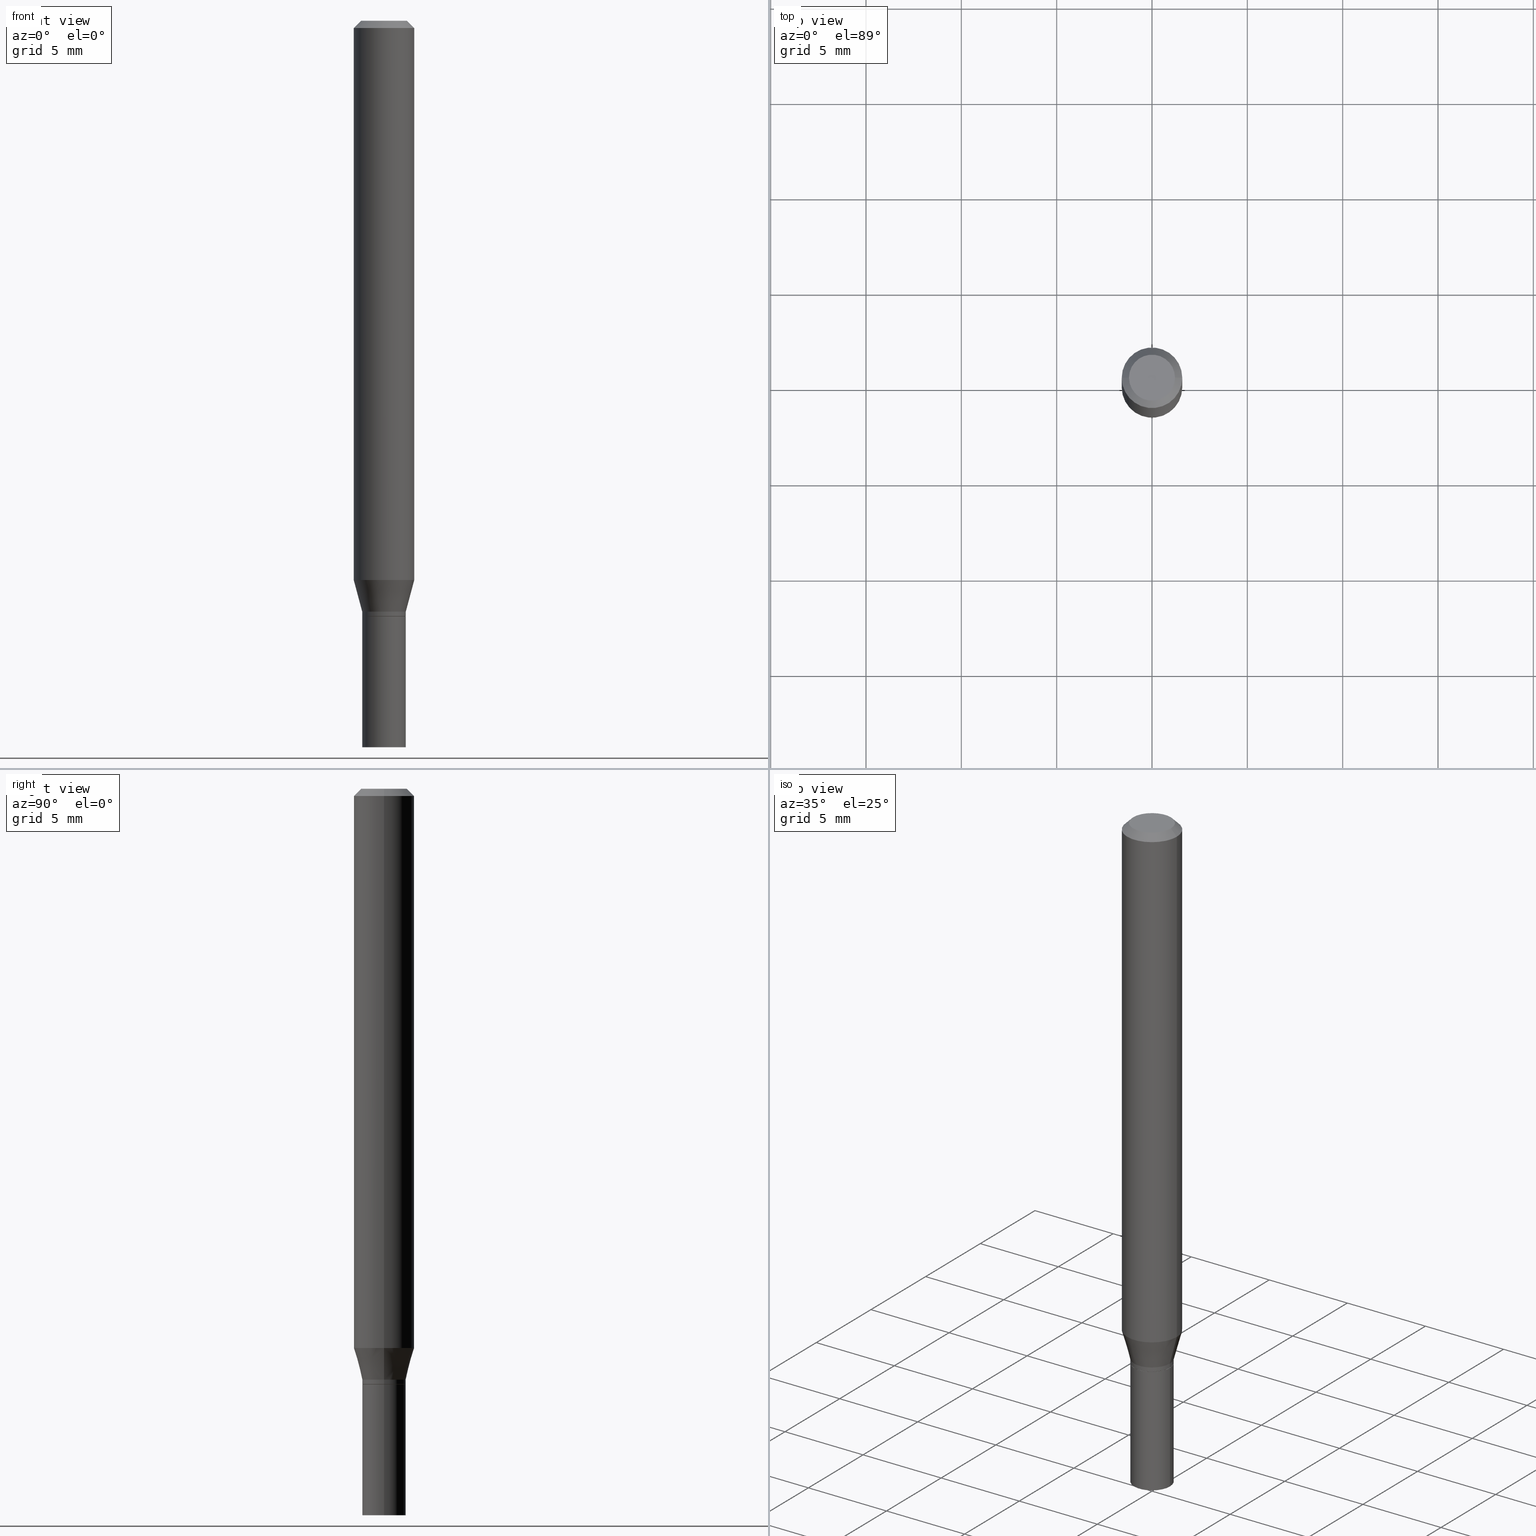
[diagram: canonical four-view strip — front | top / right | iso, engineering-drawing reading convention]
A machine part, canonical four-view strip (front | top / right | iso — engineering-drawing reading convention). The complete STEP part file that produces these views, byte-faithful:
ISO-10303-21;
HEADER;
FILE_DESCRIPTION (( 'STEP AP203' ),
    '1' );
FILE_NAME ('02462.STEP',
    '2024-03-18T20:44:31',
    ( '' ),
    ( '' ),
    'SwSTEP 2.0',
    'SolidWorks 2023',
    '' );
FILE_SCHEMA (( 'CONFIG_CONTROL_DESIGN' ));
ENDSEC;

DATA;
#1 = LINE ( 'NONE', #433, #431 ) ;
#2 = ADVANCED_FACE ( 'NONE', ( #178 ), #172, .T. ) ;
#3 = PERSON_AND_ORGANIZATION ( #427, #273 ) ;
#4 = DIRECTION ( 'NONE',  ( 1.000000000000000000, -6.982962677686269077E-15, 0.000000000000000000 ) ) ;
#5 = EDGE_CURVE ( 'NONE', #339, #103, #352, .T. ) ;
#6 = DIRECTION ( 'NONE',  ( 1.000000000000000000, -6.982962677686266711E-15, 4.876176775795936353E-29 ) ) ;
#7 = AXIS2_PLACEMENT_3D ( 'NONE', #434, #114, #395 ) ;
#8 = CIRCLE ( 'NONE', #194, 0.04500000000000006078 ) ;
#9 = CARTESIAN_POINT ( 'NONE',  ( 2.823756201468233313E-29, -4.031575482759418834E-15, -1.154689110867545443 ) ) ;
#10 = CYLINDRICAL_SURFACE ( 'NONE', #13, 0.04499999999999999833 ) ;
#11 = ADVANCED_FACE ( 'NONE', ( #285 ), #213, .T. ) ;
#12 = FACE_OUTER_BOUND ( 'NONE', #160, .T. ) ;
#13 = AXIS2_PLACEMENT_3D ( 'NONE', #261, #223, #300 ) ;
#14 = SECURITY_CLASSIFICATION ( '', '', #260 ) ;
#15 = CYLINDRICAL_SURFACE ( 'NONE', #414, 0.06250000000000000000 ) ;
#16 = ADVANCED_FACE ( 'NONE', ( #287 ), #154, .T. ) ;
#17 = LINE ( 'NONE', #228, #76 ) ;
#18 = CALENDAR_DATE ( 2024, 18, 3 ) ;
#19 = CARTESIAN_POINT ( 'NONE',  ( 0.04500000000000012323, -3.142333204958828697E-16, 2.194279549108177273E-30 ) ) ;
#20 = CALENDAR_DATE ( 2024, 18, 3 ) ;
#21 = ORIENTED_EDGE ( 'NONE', *, *, #26, .F. ) ;
#22 = APPROVAL_DATE_TIME ( #262, #226 ) ;
#23 = AXIS2_PLACEMENT_3D ( 'NONE', #428, #31, #133 ) ;
#24 = DIRECTION ( 'NONE',  ( 1.000000000000000000, -6.982962677686269866E-15, 0.000000000000000000 ) ) ;
#25 = ORIENTED_EDGE ( 'NONE', *, *, #143, .T. ) ;
#26 = EDGE_CURVE ( 'NONE', #460, #70, #120, .T. ) ;
#27 = CARTESIAN_POINT ( 'NONE',  ( 0.04499999999999999833, -5.551455328760600652E-15, -1.500000000000000222 ) ) ;
#28 = DIRECTION ( 'NONE',  ( 1.000000000000000000, 0.000000000000000000, 0.000000000000000000 ) ) ;
#29 = EDGE_LOOP ( 'NONE', ( #315, #425 ) ) ;
#30 = CC_DESIGN_DATE_AND_TIME_ASSIGNMENT ( #151, #217, ( #14 ) ) ;
#31 = DIRECTION ( 'NONE',  ( -2.445468806185136597E-29, 3.491481338843145583E-15, 1.000000000000000000 ) ) ;
#32 = APPROVAL_ROLE ( '' ) ;
#33 = ORIENTED_EDGE ( 'NONE', *, *, #37, .T. ) ;
#34 = CARTESIAN_POINT ( 'NONE',  ( -0.04500000000000019262, -3.939863002296591368E-15, -1.220000000000000195 ) ) ;
#35 = EDGE_LOOP ( 'NONE', ( #376, #386, #175, #277 ) ) ;
#36 = AXIS2_PLACEMENT_3D ( 'NONE', #159, #89, #51 ) ;
#37 = EDGE_CURVE ( 'NONE', #171, #134, #1, .T. ) ;
#38 = ADVANCED_FACE ( 'NONE', ( #402 ), #218, .T. ) ;
#39 = ORIENTED_EDGE ( 'NONE', *, *, #449, .F. ) ;
#40 =( CONVERSION_BASED_UNIT ( 'INCH', #466 ) LENGTH_UNIT ( ) NAMED_UNIT ( #176 ) );
#41 = DIRECTION ( 'NONE',  ( -2.445468806185136597E-29, 3.491481338843145583E-15, 1.000000000000000000 ) ) ;
#42 = CARTESIAN_POINT ( 'NONE',  ( -0.04499999999999999833, -4.446127796428848702E-15, -1.500000000000000222 ) ) ;
#43 = CIRCLE ( 'NONE', #291, 0.06250000000000000000 ) ;
#44 = CARTESIAN_POINT ( 'NONE',  ( 0.04500000000000019262, -4.573840553884520788E-15, -1.220000000000000195 ) ) ;
#45 = CARTESIAN_POINT ( 'NONE',  ( 3.668203209277705088E-31, -5.237222008264718399E-17, -0.01499999999999999944 ) ) ;
#46 = DIRECTION ( 'NONE',  ( 1.000000000000000000, -6.982962677686257244E-15, 0.000000000000000000 ) ) ;
#47 = VECTOR ( 'NONE', #184, 39.37007874015748143 ) ;
#48 = CONICAL_SURFACE ( 'NONE', #390, 0.06250000000000000000, 0.7853981633974456145 ) ;
#49 = APPROVAL ( #86, 'UNSPECIFIED' ) ;
#50 = DIRECTION ( 'NONE',  ( 1.000000000000000000, -6.982962677686266711E-15, 4.876176775795935793E-29 ) ) ;
#51 = DIRECTION ( 'NONE',  ( 1.000000000000000000, -6.982962677686259611E-15, 0.000000000000000000 ) ) ;
#52 = LINE ( 'NONE', #19, #301 ) ;
#53 = ORIENTED_EDGE ( 'NONE', *, *, #112, .F. ) ;
#54 = ADVANCED_FACE ( 'NONE', ( #321 ), #216, .F. ) ;
#55 = AXIS2_PLACEMENT_3D ( 'NONE', #350, #236, #28 ) ;
#56 = DIRECTION ( 'NONE',  ( 1.000000000000000000, -6.982962677686267499E-15, 4.884662768193073002E-29 ) ) ;
#57 = EDGE_CURVE ( 'NONE', #110, #457, #264, .T. ) ;
#58 = COORDINATED_UNIVERSAL_TIME_OFFSET ( 5, 0, .BEHIND. ) ;
#59 = DIRECTION ( 'NONE',  ( -2.445468806185136877E-29, 3.491481338843145188E-15, 1.000000000000000000 ) ) ;
#60 = COORDINATED_UNIVERSAL_TIME_OFFSET ( 5, 0, .BEHIND. ) ;
#61 = ORIENTED_EDGE ( 'NONE', *, *, #286, .F. ) ;
#62 = ORIENTED_EDGE ( 'NONE', *, *, #219, .F. ) ;
#63 = AXIS2_PLACEMENT_3D ( 'NONE', #150, #253, #148 ) ;
#64 = CIRCLE ( 'NONE', #398, 0.04500000000000019262 ) ;
#65 = EDGE_CURVE ( 'NONE', #238, #457, #255, .T. ) ;
#66 = CC_DESIGN_APPROVAL ( #226, ( #14 ) ) ;
#67 = ORIENTED_EDGE ( 'NONE', *, *, #392, .F. ) ;
#68 = APPLICATION_CONTEXT ( 'configuration controlled 3d designs of mechanical parts and assemblies' ) ;
#69 = CARTESIAN_POINT ( 'NONE',  ( 3.142333204959120083E-16, 0.04499999999999570316, -1.230000000000000204 ) ) ;
#70 = VERTEX_POINT ( 'NONE', #435 ) ;
#71 = DIRECTION ( 'NONE',  ( -2.445468806185136597E-29, 3.491481338843145583E-15, 1.000000000000000000 ) ) ;
#72 = DATE_AND_TIME ( #338, #162 ) ;
#73 = ORIENTED_EDGE ( 'NONE', *, *, #57, .T. ) ;
#74 = DIRECTION ( 'NONE',  ( -2.445468806185136597E-29, 3.491481338843145583E-15, 1.000000000000000000 ) ) ;
#75 = AXIS2_PLACEMENT_3D ( 'NONE', #80, #118, #440 ) ;
#76 = VECTOR ( 'NONE', #371, 39.37007874015748143 ) ;
#77 = ORIENTED_EDGE ( 'NONE', *, *, #401, .T. ) ;
#78 = FACE_OUTER_BOUND ( 'NONE', #168, .T. ) ;
#79 = CARTESIAN_POINT ( 'NONE',  ( 3.007926631607718216E-29, -4.294522046777069173E-15, -1.230000000000000204 ) ) ;
#80 = CARTESIAN_POINT ( 'NONE',  ( 0.000000000000000000, 0.000000000000000000, 0.000000000000000000 ) ) ;
#81 = LOCAL_TIME ( 16, 44, 31.00000000000000000, #60 ) ;
#82 = APPROVAL_ROLE ( '' ) ;
#83 = CARTESIAN_POINT ( 'NONE',  ( -0.06250000000000000000, 3.840629472727444916E-16, -0.01499999999999999944 ) ) ;
#84 = DIRECTION ( 'NONE',  ( -2.445468806185136877E-29, 3.491481338843145188E-15, 1.000000000000000000 ) ) ;
#85 = CC_DESIGN_PERSON_AND_ORGANIZATION_ASSIGNMENT ( #308, #98, ( #153 ) ) ;
#86 = APPROVAL_STATUS ( 'not_yet_approved' ) ;
#87 = CARTESIAN_POINT ( 'NONE',  ( 0.04499999999999999833, -3.142333204958819823E-16, 2.194279549108170967E-30 ) ) ;
#88 = APPROVAL_DATE_TIME ( #121, #49 ) ;
#89 = DIRECTION ( 'NONE',  ( -2.445468806185136597E-29, 3.491481338843145583E-15, 1.000000000000000000 ) ) ;
#90 = ORIENTED_EDGE ( 'NONE', *, *, #286, .T. ) ;
#91 = FACE_OUTER_BOUND ( 'NONE', #462, .T. ) ;
#92 = DIRECTION ( 'NONE',  ( 1.000000000000000000, -6.982962677686266711E-15, 4.876176775795935793E-29 ) ) ;
#93 = CC_DESIGN_PERSON_AND_ORGANIZATION_ASSIGNMENT ( #126, #185, ( #333 ) ) ;
#94 = AXIS2_PLACEMENT_3D ( 'NONE', #45, #326, #279 ) ;
#95 = VECTOR ( 'NONE', #421, 39.37007874015748143 ) ;
#96 = LOCAL_TIME ( 16, 44, 31.00000000000000000, #221 ) ;
#97 = FACE_OUTER_BOUND ( 'NONE', #102, .T. ) ;
#98 = PERSON_AND_ORGANIZATION_ROLE ( 'creator' ) ;
#99 = ORIENTED_EDGE ( 'NONE', *, *, #298, .T. ) ;
#100 = MANIFOLD_SOLID_BREP ( 'Body-Move/Copy2[1]', #116 ) ;
#101 = DIRECTION ( 'NONE',  ( 2.438088387897960049E-29, -3.491481338843145188E-15, -1.000000000000000000 ) ) ;
#102 = EDGE_LOOP ( 'NONE', ( #77, #33, #313, #61 ) ) ;
#103 = VERTEX_POINT ( 'NONE', #42 ) ;
#104 = EDGE_LOOP ( 'NONE', ( #53, #62, #430, #422 ) ) ;
#105 = DIRECTION ( 'NONE',  ( 1.000000000000000000, -6.982962677686270655E-15, 0.000000000000000000 ) ) ;
#106 = ORIENTED_EDGE ( 'NONE', *, *, #37, .F. ) ;
#107 = CARTESIAN_POINT ( 'NONE',  ( 0.06250000000000000000, -4.888073874380388472E-16, -0.01499999999999999944 ) ) ;
#108 = ORIENTED_EDGE ( 'NONE', *, *, #65, .F. ) ;
#109 = CONICAL_SURFACE ( 'NONE', #182, 0.04449999999999999789, 0.7853981633974739252 ) ;
#110 = VERTEX_POINT ( 'NONE', #115 ) ;
#111 = APPROVAL_PERSON_ORGANIZATION ( #437, #49, #82 ) ;
#112 = EDGE_CURVE ( 'NONE', #306, #389, #316, .T. ) ;
#113 = CARTESIAN_POINT ( 'NONE',  ( 3.668203209277704895E-29, -5.237222008264718177E-15, -1.500000000000000222 ) ) ;
#114 = DIRECTION ( 'NONE',  ( -2.445468806185136597E-29, 3.491481338843145583E-15, 1.000000000000000000 ) ) ;
#115 = CARTESIAN_POINT ( 'NONE',  ( -0.06250000000000000000, -3.587486272909356218E-15, -1.154689110867545443 ) ) ;
#116 = CLOSED_SHELL ( 'NONE', ( #325, #248, #237, #359 ) ) ;
#117 = CIRCLE ( 'NONE', #445, 0.04499999999999999833 ) ;
#118 = DIRECTION ( 'NONE',  ( -2.445468806185136597E-29, 3.491481338843145583E-15, 1.000000000000000000 ) ) ;
#119 = EDGE_CURVE ( 'NONE', #110, #70, #323, .T. ) ;
#120 = LINE ( 'NONE', #83, #413 ) ;
#121 = DATE_AND_TIME ( #289, #96 ) ;
#122 = PLANE ( 'NONE',  #173 ) ;
#123 = VERTEX_POINT ( 'NONE', #280 ) ;
#124 = VECTOR ( 'NONE', #186, 39.37007874015748854 ) ;
#125 = APPROVAL_PERSON_ORGANIZATION ( #198, #282, #32 ) ;
#126 = PERSON_AND_ORGANIZATION ( #427, #273 ) ;
#127 = LOCAL_TIME ( 16, 44, 31.00000000000000000, #58 ) ;
#128 = DIRECTION ( 'NONE',  ( -2.438088387897960049E-29, 3.491481338843145188E-15, 1.000000000000000000 ) ) ;
#129 = ORIENTED_EDGE ( 'NONE', *, *, #420, .F. ) ;
#130 = CARTESIAN_POINT ( 'NONE',  ( 3.668203209277705088E-31, -5.237222008264718399E-17, -0.01499999999999999944 ) ) ;
#131 = VERTEX_POINT ( 'NONE', #439 ) ;
#132 = CARTESIAN_POINT ( 'NONE',  ( 3.576687321579069994E-29, -5.368277968210015545E-15, -1.500000000000000222 ) ) ;
#133 = DIRECTION ( 'NONE',  ( 1.000000000000000000, -6.982962677686259611E-15, 0.000000000000000000 ) ) ;
#134 = VERTEX_POINT ( 'NONE', #254 ) ;
#135 = ADVANCED_FACE ( 'NONE', ( #78 ), #396, .T. ) ;
#136 = ORIENTED_EDGE ( 'NONE', *, *, #5, .T. ) ;
#137 = CARTESIAN_POINT ( 'NONE',  ( 3.316907271900976096E-16, 0.04749999999999999362, -1.224772766956247324E-16 ) ) ;
#138 = ORIENTED_EDGE ( 'NONE', *, *, #401, .F. ) ;
#139 = CIRCLE ( 'NONE', #284, 0.04749999999999999362 ) ;
#140 = DIRECTION ( 'NONE',  ( 1.000000000000000000, -6.982962677686257244E-15, 0.000000000000000000 ) ) ;
#141 = ORIENTED_EDGE ( 'NONE', *, *, #443, .F. ) ;
#142 = DESIGN_CONTEXT ( 'detailed design', #68, 'design' ) ;
#143 = EDGE_CURVE ( 'NONE', #103, #245, #362, .T. ) ;
#144 = DIRECTION ( 'NONE',  ( -2.445468806185136597E-29, 3.491481338843145583E-15, 1.000000000000000000 ) ) ;
#145 = EDGE_LOOP ( 'NONE', ( #39, #276, #357, #129 ) ) ;
#146 = ADVANCED_BREP_SHAPE_REPRESENTATION ( '02462', ( #100, #404, #55 ), #318 ) ;
#147 = EDGE_LOOP ( 'NONE', ( #138, #347 ) ) ;
#148 = DIRECTION ( 'NONE',  ( 1.000000000000000000, -6.982962677686259611E-15, 0.000000000000000000 ) ) ;
#149 = CC_DESIGN_PERSON_AND_ORGANIZATION_ASSIGNMENT ( #3, #322, ( #14 ) ) ;
#150 = CARTESIAN_POINT ( 'NONE',  ( 2.983471943545866670E-29, -4.259607233388637524E-15, -1.220000000000000195 ) ) ;
#151 = DATE_AND_TIME ( #370, #319 ) ;
#152 = DIRECTION ( 'NONE',  ( -2.445468806185136597E-29, 3.491481338843145583E-15, 1.000000000000000000 ) ) ;
#153 = PRODUCT_DEFINITION ( 'UNKNOWN', '', #333, #142 ) ;
#154 = CONICAL_SURFACE ( 'NONE', #94, 0.06250000000000000000, 0.7853981633974456145 ) ;
#155 = EDGE_CURVE ( 'NONE', #171, #131, #444, .T. ) ;
#156 = DIRECTION ( 'NONE',  ( 0.2588190451025205174, 1.565188264969628476E-15, 0.9659258262890684232 ) ) ;
#157 = AXIS2_PLACEMENT_3D ( 'NONE', #130, #442, #328 ) ;
#158 = DIRECTION ( 'NONE',  ( -2.445468806185136597E-29, 3.491481338843145583E-15, 1.000000000000000000 ) ) ;
#159 = CARTESIAN_POINT ( 'NONE',  ( 2.983471943545866670E-29, -4.259607233388637524E-15, -1.220000000000000195 ) ) ;
#160 = EDGE_LOOP ( 'NONE', ( #247, #169, #167, #200 ) ) ;
#161 = CARTESIAN_POINT ( 'NONE',  ( -0.04449999999999999789, -3.975681302189713503E-15, -1.230000000000000204 ) ) ;
#162 = LOCAL_TIME ( 16, 44, 31.00000000000000000, #244 ) ;
#163 = FACE_OUTER_BOUND ( 'NONE', #429, .T. ) ;
#164 = DIRECTION ( 'NONE',  ( 2.445468806185136597E-29, -3.491481338843145583E-15, -1.000000000000000000 ) ) ;
#165 = EDGE_CURVE ( 'NONE', #70, #389, #43, .T. ) ;
#166 = CARTESIAN_POINT ( 'NONE',  ( -2.121106073929386760E-45, 3.028377322213383622E-31, 8.673617379884936499E-17 ) ) ;
#167 = ORIENTED_EDGE ( 'NONE', *, *, #65, .T. ) ;
#168 = EDGE_LOOP ( 'NONE', ( #456, #342, #229, #344 ) ) ;
#169 = ORIENTED_EDGE ( 'NONE', *, *, #420, .T. ) ;
#170 = DIRECTION ( 'NONE',  ( -1.000000000000000000, 6.982962677686265922E-15, -4.876176775795935793E-29 ) ) ;
#171 = VERTEX_POINT ( 'NONE', #161 ) ;
#172 = CONICAL_SURFACE ( 'NONE', #63, 0.04500000000000019262, 0.2617993877991491858 ) ;
#173 = AXIS2_PLACEMENT_3D ( 'NONE', #132, #128, #257 ) ;
#174 = FACE_OUTER_BOUND ( 'NONE', #242, .T. ) ;
#175 = ORIENTED_EDGE ( 'NONE', *, *, #233, .T. ) ;
#176 = DIMENSIONAL_EXPONENTS ( 1.000000000000000000, 0.000000000000000000, 0.000000000000000000, 0.000000000000000000, 0.000000000000000000, 0.000000000000000000, 0.000000000000000000 ) ;
#177 = CARTESIAN_POINT ( 'NONE',  ( 3.007926631607718216E-29, -4.294522046777069173E-15, -1.230000000000000204 ) ) ;
#178 = FACE_OUTER_BOUND ( 'NONE', #203, .T. ) ;
#179 = EDGE_CURVE ( 'NONE', #389, #70, #382, .T. ) ;
#180 = DIRECTION ( 'NONE',  ( -0.7071067811865454633, 2.468850131082235761E-15, -0.7071067811865493491 ) ) ;
#181 = VECTOR ( 'NONE', #84, 39.37007874015748143 ) ;
#182 = AXIS2_PLACEMENT_3D ( 'NONE', #235, #349, #302 ) ;
#183 = CARTESIAN_POINT ( 'NONE',  ( 0.000000000000000000, 0.000000000000000000, 0.000000000000000000 ) ) ;
#184 = DIRECTION ( 'NONE',  ( -2.445468806185136877E-29, 3.491481338843145188E-15, 1.000000000000000000 ) ) ;
#185 = PERSON_AND_ORGANIZATION_ROLE ( 'creator' ) ;
#186 = DIRECTION ( 'NONE',  ( 0.7071067811865454633, -7.319954787623246579E-15, -0.7071067811865493491 ) ) ;
#187 = DATE_TIME_ROLE ( 'creation_date' ) ;
#188 = CARTESIAN_POINT ( 'NONE',  ( 3.668203209277705088E-31, -5.237222008264718399E-17, -0.01499999999999999944 ) ) ;
#189 = VECTOR ( 'NONE', #275, 39.37007874015748143 ) ;
#190 = CARTESIAN_POINT ( 'NONE',  ( 0.000000000000000000, 0.000000000000000000, 0.000000000000000000 ) ) ;
#191 = DIRECTION ( 'NONE',  ( 0.7071067811865656694, -2.468850131082446387E-15, 0.7071067811865294761 ) ) ;
#192 = ORIENTED_EDGE ( 'NONE', *, *, #410, .T. ) ;
#193 = CARTESIAN_POINT ( 'NONE',  ( 0.04749999999999999362, -4.035134999187577144E-16, 8.673617379885194112E-17 ) ) ;
#194 = AXIS2_PLACEMENT_3D ( 'NONE', #243, #74, #24 ) ;
#195 = DIRECTION ( 'NONE',  ( -2.445468806185136597E-29, 3.491481338843145583E-15, 1.000000000000000000 ) ) ;
#196 = ADVANCED_FACE ( 'NONE', ( #12 ), #426, .T. ) ;
#197 = DIRECTION ( 'NONE',  ( -2.445468806185136597E-29, 3.491481338843145583E-15, 1.000000000000000000 ) ) ;
#198 = PERSON_AND_ORGANIZATION ( #427, #273 ) ;
#199 = CARTESIAN_POINT ( 'NONE',  ( 0.06250000000000000000, -4.468010650114809714E-15, -1.154689110867545443 ) ) ;
#200 = ORIENTED_EDGE ( 'NONE', *, *, #57, .F. ) ;
#201 = CARTESIAN_POINT ( 'NONE',  ( 3.007926631607718216E-29, -4.294522046777069173E-15, -1.230000000000000204 ) ) ;
#202 = APPLICATION_PROTOCOL_DEFINITION ( 'international standard', 'config_control_design', 1994, #330 ) ;
#203 = EDGE_LOOP ( 'NONE', ( #252, #192, #141, #108 ) ) ;
#204 = PRODUCT_DEFINITION_SHAPE ( 'NONE', 'NONE',  #153 ) ;
#205 = CARTESIAN_POINT ( 'NONE',  ( 3.668203209277704895E-29, -5.237222008264718177E-15, -1.500000000000000222 ) ) ;
#206 = PERSON_AND_ORGANIZATION_ROLE ( 'design_owner' ) ;
#207 = ORIENTED_EDGE ( 'NONE', *, *, #387, .F. ) ;
#208 = DIRECTION ( 'NONE',  ( 1.000000000000000000, -6.982962677686269077E-15, 0.000000000000000000 ) ) ;
#209 = ORIENTED_EDGE ( 'NONE', *, *, #212, .F. ) ;
#210 = CIRCLE ( 'NONE', #354, 0.04499999999999999833 ) ;
#211 = ORIENTED_EDGE ( 'NONE', *, *, #165, .F. ) ;
#212 = EDGE_CURVE ( 'NONE', #238, #231, #64, .T. ) ;
#213 = CYLINDRICAL_SURFACE ( 'NONE', #353, 0.04500000000000012323 ) ;
#214 = DIRECTION ( 'NONE',  ( 1.000000000000000000, -6.982962677686265922E-15, 4.876176775795935793E-29 ) ) ;
#215 = CIRCLE ( 'NONE', #267, 0.04749999999999999362 ) ;
#216 = PLANE ( 'NONE',  #222 ) ;
#217 = DATE_TIME_ROLE ( 'classification_date' ) ;
#218 = CYLINDRICAL_SURFACE ( 'NONE', #7, 0.04500000000000012323 ) ;
#219 = EDGE_CURVE ( 'NONE', #460, #306, #215, .T. ) ;
#220 = CARTESIAN_POINT ( 'NONE',  ( 3.007926631607718216E-29, -4.294522046777069173E-15, -1.230000000000000204 ) ) ;
#221 = COORDINATED_UNIVERSAL_TIME_OFFSET ( 5, 0, .BEHIND. ) ;
#222 = AXIS2_PLACEMENT_3D ( 'NONE', #79, #360, #214 ) ;
#223 = DIRECTION ( 'NONE',  ( -2.445468806185136597E-29, 3.491481338843145583E-15, 1.000000000000000000 ) ) ;
#224 = AXIS2_PLACEMENT_3D ( 'NONE', #69, #424, #305 ) ;
#225 = PERSON_AND_ORGANIZATION ( #427, #273 ) ;
#226 = APPROVAL ( #397, 'UNSPECIFIED' ) ;
#227 = DIRECTION ( 'NONE',  ( 1.000000000000000000, -6.982962677686259611E-15, 0.000000000000000000 ) ) ;
#228 = CARTESIAN_POINT ( 'NONE',  ( 0.06250000000000000000, -4.364351673553916694E-16, 3.047610484872459871E-30 ) ) ;
#229 = ORIENTED_EDGE ( 'NONE', *, *, #179, .F. ) ;
#230 = CARTESIAN_POINT ( 'NONE',  ( 3.007926631607718216E-29, -4.294522046777069173E-15, -1.230000000000000204 ) ) ;
#231 = VERTEX_POINT ( 'NONE', #403 ) ;
#232 = AXIS2_PLACEMENT_3D ( 'NONE', #113, #358, #4 ) ;
#233 = EDGE_CURVE ( 'NONE', #339, #266, #290, .T. ) ;
#234 = CIRCLE ( 'NONE', #293, 0.04499999999999999833 ) ;
#235 = CARTESIAN_POINT ( 'NONE',  ( 3.007926631607718216E-29, -4.294522046777069173E-15, -1.230000000000000204 ) ) ;
#236 = DIRECTION ( 'NONE',  ( 0.000000000000000000, 0.000000000000000000, 1.000000000000000000 ) ) ;
#237 = ADVANCED_FACE ( 'NONE', ( #292 ), #10, .T. ) ;
#238 = VERTEX_POINT ( 'NONE', #453 ) ;
#239 = AXIS2_PLACEMENT_3D ( 'NONE', #220, #365, #46 ) ;
#240 = AXIS2_PLACEMENT_3D ( 'NONE', #177, #314, #356 ) ;
#241 = DIRECTION ( 'NONE',  ( 1.000000000000000000, -6.982962677686269077E-15, 0.000000000000000000 ) ) ;
#242 = EDGE_LOOP ( 'NONE', ( #274, #272 ) ) ;
#243 = CARTESIAN_POINT ( 'NONE',  ( 3.006703897204625414E-29, -4.292776306107647670E-15, -1.229500000000000037 ) ) ;
#244 = COORDINATED_UNIVERSAL_TIME_OFFSET ( 5, 0, .BEHIND. ) ;
#245 = VERTEX_POINT ( 'NONE', #367 ) ;
#246 = PLANE ( 'NONE',  #310 ) ;
#247 = ORIENTED_EDGE ( 'NONE', *, *, #410, .F. ) ;
#248 = ADVANCED_FACE ( 'NONE', ( #163 ), #122, .F. ) ;
#249 = VECTOR ( 'NONE', #335, 39.37007874015748143 ) ;
#250 =( NAMED_UNIT ( * ) PLANE_ANGLE_UNIT ( ) SI_UNIT ( $, .RADIAN. ) );
#251 = EDGE_CURVE ( 'NONE', #306, #460, #139, .T. ) ;
#252 = ORIENTED_EDGE ( 'NONE', *, *, #212, .T. ) ;
#253 = DIRECTION ( 'NONE',  ( -2.445468806185136597E-29, 3.491481338843145583E-15, 1.000000000000000000 ) ) ;
#254 = CARTESIAN_POINT ( 'NONE',  ( -0.04500000000000006078, -3.973032075015602302E-15, -1.229500000000000037 ) ) ;
#255 = LINE ( 'NONE', #44, #317 ) ;
#256 = CARTESIAN_POINT ( 'NONE',  ( -0.04499999999999999833, 3.197442310920450718E-16, -2.213520790614707560E-30 ) ) ;
#257 = DIRECTION ( 'NONE',  ( 1.000000000000000000, -6.982962677686265922E-15, 4.876176775795935793E-29 ) ) ;
#258 = CARTESIAN_POINT ( 'NONE',  ( 0.04499999999999999833, -4.608755367272951648E-15, -1.230000000000000204 ) ) ;
#259 = CIRCLE ( 'NONE', #278, 0.06250000000000000000 ) ;
#260 = SECURITY_CLASSIFICATION_LEVEL ( 'unclassified' ) ;
#261 = CARTESIAN_POINT ( 'NONE',  ( 0.000000000000000000, 0.000000000000000000, 0.000000000000000000 ) ) ;
#262 = DATE_AND_TIME ( #18, #127 ) ;
#263 = FACE_OUTER_BOUND ( 'NONE', #408, .T. ) ;
#264 = CIRCLE ( 'NONE', #451, 0.06250000000000000000 ) ;
#265 = APPROVAL_STATUS ( 'not_yet_approved' ) ;
#266 = VERTEX_POINT ( 'NONE', #258 ) ;
#267 = AXIS2_PLACEMENT_3D ( 'NONE', #166, #197, #56 ) ;
#268 = FACE_OUTER_BOUND ( 'NONE', #309, .T. ) ;
#269 = DIRECTION ( 'NONE',  ( 1.000000000000000000, -6.982962677686269866E-15, 0.000000000000000000 ) ) ;
#270 = ORIENTED_EDGE ( 'NONE', *, *, #463, .T. ) ;
#271 = PLANE ( 'NONE',  #224 ) ;
#272 = ORIENTED_EDGE ( 'NONE', *, *, #251, .T. ) ;
#273 = ORGANIZATION ( 'UNSPECIFIED', 'UNSPECIFIED', '' ) ;
#274 = ORIENTED_EDGE ( 'NONE', *, *, #219, .T. ) ;
#275 = DIRECTION ( 'NONE',  ( -2.445468806185136877E-29, 3.491481338843145188E-15, 1.000000000000000000 ) ) ;
#276 = ORIENTED_EDGE ( 'NONE', *, *, #392, .T. ) ;
#277 = ORIENTED_EDGE ( 'NONE', *, *, #327, .F. ) ;
#278 = AXIS2_PLACEMENT_3D ( 'NONE', #307, #458, #105 ) ;
#279 = DIRECTION ( 'NONE',  ( -1.000000000000000000, 6.982962677686266711E-15, 0.000000000000000000 ) ) ;
#280 = CARTESIAN_POINT ( 'NONE',  ( 0.04500000000000006078, -4.607009626603530145E-15, -1.229500000000000037 ) ) ;
#281 = PERSON_AND_ORGANIZATION ( #427, #273 ) ;
#282 = APPROVAL ( #265, 'UNSPECIFIED' ) ;
#283 = DIRECTION ( 'NONE',  ( -0.7071067811865656694, 7.493145998870420424E-15, 0.7071067811865294761 ) ) ;
#284 = AXIS2_PLACEMENT_3D ( 'NONE', #369, #195, #411 ) ;
#285 = FACE_OUTER_BOUND ( 'NONE', #297, .T. ) ;
#286 = EDGE_CURVE ( 'NONE', #131, #123, #407, .T. ) ;
#287 = FACE_OUTER_BOUND ( 'NONE', #104, .T. ) ;
#288 = ADVANCED_FACE ( 'NONE', ( #91 ), #48, .T. ) ;
#289 = CALENDAR_DATE ( 2024, 18, 3 ) ;
#290 = LINE ( 'NONE', #87, #249 ) ;
#291 = AXIS2_PLACEMENT_3D ( 'NONE', #188, #158, #391 ) ;
#292 = FACE_OUTER_BOUND ( 'NONE', #35, .T. ) ;
#293 = AXIS2_PLACEMENT_3D ( 'NONE', #205, #71, #241 ) ;
#294 = CC_DESIGN_APPROVAL ( #49, ( #333 ) ) ;
#295 = UNCERTAINTY_MEASURE_WITH_UNIT (LENGTH_MEASURE( 1.000000000000000082E-05 ), #40, 'distance_accuracy_value', 'NONE');
#296 = CARTESIAN_POINT ( 'NONE',  ( 0.000000000000000000, 0.000000000000000000, 0.000000000000000000 ) ) ;
#297 = EDGE_LOOP ( 'NONE', ( #270, #336, #209, #464 ) ) ;
#298 = EDGE_CURVE ( 'NONE', #457, #389, #17, .T. ) ;
#299 = DIRECTION ( 'NONE',  ( -2.445468806185136597E-29, 3.491481338843145583E-15, 1.000000000000000000 ) ) ;
#300 = DIRECTION ( 'NONE',  ( 1.000000000000000000, -6.982962677686266711E-15, 4.876176775795935793E-29 ) ) ;
#301 = VECTOR ( 'NONE', #59, 39.37007874015748143 ) ;
#302 = DIRECTION ( 'NONE',  ( 1.000000000000000000, -6.982962677686257244E-15, 0.000000000000000000 ) ) ;
#303 = EDGE_LOOP ( 'NONE', ( #454, #73, #99, #211 ) ) ;
#304 = EDGE_CURVE ( 'NONE', #123, #238, #52, .T. ) ;
#305 = DIRECTION ( 'NONE',  ( -1.000000000000000000, 6.982962677686265922E-15, -4.876176775795935793E-29 ) ) ;
#306 = VERTEX_POINT ( 'NONE', #193 ) ;
#307 = CARTESIAN_POINT ( 'NONE',  ( 2.823756201468233313E-29, -4.031575482759418834E-15, -1.154689110867545443 ) ) ;
#308 = PERSON_AND_ORGANIZATION ( #427, #273 ) ;
#309 = EDGE_LOOP ( 'NONE', ( #106, #448, #90, #67 ) ) ;
#310 = AXIS2_PLACEMENT_3D ( 'NONE', #137, #101, #170 ) ;
#311 = ADVANCED_FACE ( 'NONE', ( #332 ), #15, .T. ) ;
#312 = LINE ( 'NONE', #461, #189 ) ;
#313 = ORIENTED_EDGE ( 'NONE', *, *, #463, .F. ) ;
#314 = DIRECTION ( 'NONE',  ( -2.445468806185136597E-29, 3.491481338843145583E-15, 1.000000000000000000 ) ) ;
#315 = ORIENTED_EDGE ( 'NONE', *, *, #387, .T. ) ;
#316 = LINE ( 'NONE', #320, #124 ) ;
#317 = VECTOR ( 'NONE', #156, 39.37007874015748143 ) ;
#318 =( GEOMETRIC_REPRESENTATION_CONTEXT ( 3 ) GLOBAL_UNCERTAINTY_ASSIGNED_CONTEXT ( ( #295 ) ) GLOBAL_UNIT_ASSIGNED_CONTEXT ( ( #40, #250, #393 ) ) REPRESENTATION_CONTEXT ( 'NONE', 'WORKASPACE' ) );
#319 = LOCAL_TIME ( 16, 44, 31.00000000000000000, #409 ) ;
#320 = CARTESIAN_POINT ( 'NONE',  ( 0.06250000000000000000, -4.811533449433679005E-16, -0.01499999999999999944 ) ) ;
#321 = FACE_OUTER_BOUND ( 'NONE', #147, .T. ) ;
#322 = PERSON_AND_ORGANIZATION_ROLE ( 'classification_officer' ) ;
#323 = LINE ( 'NONE', #400, #47 ) ;
#324 = CIRCLE ( 'NONE', #23, 0.04500000000000019262 ) ;
#325 = ADVANCED_FACE ( 'NONE', ( #263 ), #412, .T. ) ;
#326 = DIRECTION ( 'NONE',  ( 2.445468806185136597E-29, -3.491481338843145583E-15, -1.000000000000000000 ) ) ;
#327 = EDGE_CURVE ( 'NONE', #245, #266, #117, .T. ) ;
#328 = DIRECTION ( 'NONE',  ( 1.000000000000000000, -6.982962677686266711E-15, 0.000000000000000000 ) ) ;
#329 = ORIENTED_EDGE ( 'NONE', *, *, #5, .F. ) ;
#330 = APPLICATION_CONTEXT ( 'configuration controlled 3d designs of mechanical parts and assemblies' ) ;
#331 = CARTESIAN_POINT ( 'NONE',  ( 0.04449999999999999789, -4.605263885934107852E-15, -1.230000000000000204 ) ) ;
#332 = FACE_OUTER_BOUND ( 'NONE', #303, .T. ) ;
#333 = PRODUCT_DEFINITION_FORMATION_WITH_SPECIFIED_SOURCE ( 'ANY', '', #348, .NOT_KNOWN. ) ;
#334 = ADVANCED_FACE ( 'NONE', ( #97 ), #109, .T. ) ;
#335 = DIRECTION ( 'NONE',  ( -2.445468806185136877E-29, 3.491481338843145188E-15, 1.000000000000000000 ) ) ;
#336 = ORIENTED_EDGE ( 'NONE', *, *, #449, .T. ) ;
#337 = CARTESIAN_POINT ( 'NONE',  ( 3.668203209277705088E-31, -5.237222008264718399E-17, -0.01499999999999999944 ) ) ;
#338 = CALENDAR_DATE ( 2024, 18, 3 ) ;
#339 = VERTEX_POINT ( 'NONE', #27 ) ;
#340 = APPROVAL_ROLE ( '' ) ;
#341 = CARTESIAN_POINT ( 'NONE',  ( 3.006703897204625414E-29, -4.292776306107647670E-15, -1.229500000000000037 ) ) ;
#342 = ORIENTED_EDGE ( 'NONE', *, *, #119, .T. ) ;
#343 = CIRCLE ( 'NONE', #240, 0.04449999999999999789 ) ;
#344 = ORIENTED_EDGE ( 'NONE', *, *, #298, .F. ) ;
#345 = LINE ( 'NONE', #34, #95 ) ;
#346 = APPLICATION_PROTOCOL_DEFINITION ( 'international standard', 'config_control_design', 1994, #68 ) ;
#347 = ORIENTED_EDGE ( 'NONE', *, *, #155, .F. ) ;
#348 = PRODUCT ( '02462', '02462', '', ( #459 ) ) ;
#349 = DIRECTION ( 'NONE',  ( -2.445468806185136597E-29, 3.491481338843145583E-15, 1.000000000000000000 ) ) ;
#350 = CARTESIAN_POINT ( 'NONE',  ( 0.000000000000000000, 0.000000000000000000, 0.000000000000000000 ) ) ;
#351 = ORIENTED_EDGE ( 'NONE', *, *, #406, .F. ) ;
#352 = CIRCLE ( 'NONE', #232, 0.04499999999999999833 ) ;
#353 = AXIS2_PLACEMENT_3D ( 'NONE', #183, #41, #6 ) ;
#354 = AXIS2_PLACEMENT_3D ( 'NONE', #380, #378, #208 ) ;
#355 = CC_DESIGN_PERSON_AND_ORGANIZATION_ASSIGNMENT ( #384, #206, ( #348 ) ) ;
#356 = DIRECTION ( 'NONE',  ( 1.000000000000000000, -6.982962677686257244E-15, 0.000000000000000000 ) ) ;
#357 = ORIENTED_EDGE ( 'NONE', *, *, #304, .T. ) ;
#358 = DIRECTION ( 'NONE',  ( -2.445468806185136597E-29, 3.491481338843145583E-15, 1.000000000000000000 ) ) ;
#359 = ADVANCED_FACE ( 'NONE', ( #383 ), #271, .F. ) ;
#360 = DIRECTION ( 'NONE',  ( -2.438088387897960049E-29, 3.491481338843145188E-15, 1.000000000000000000 ) ) ;
#361 = AXIS2_PLACEMENT_3D ( 'NONE', #341, #455, #269 ) ;
#362 = LINE ( 'NONE', #256, #181 ) ;
#363 =( LENGTH_UNIT ( ) NAMED_UNIT ( * ) SI_UNIT ( $, .METRE. ) );
#364 = DIRECTION ( 'NONE',  ( 1.000000000000000000, -6.982962677686270655E-15, 0.000000000000000000 ) ) ;
#365 = DIRECTION ( 'NONE',  ( -2.445468806185136597E-29, 3.491481338843145583E-15, 1.000000000000000000 ) ) ;
#366 = VECTOR ( 'NONE', #191, 39.37007874015748143 ) ;
#367 = CARTESIAN_POINT ( 'NONE',  ( -0.04499999999999999833, -4.446127796428848702E-15, -1.230000000000000204 ) ) ;
#368 = PERSON_AND_ORGANIZATION_ROLE ( 'design_supplier' ) ;
#369 = CARTESIAN_POINT ( 'NONE',  ( -2.121106073929386760E-45, 3.028377322213383622E-31, 8.673617379884936499E-17 ) ) ;
#370 = CALENDAR_DATE ( 2024, 18, 3 ) ;
#371 = DIRECTION ( 'NONE',  ( -2.445468806185136877E-29, 3.491481338843145188E-15, 1.000000000000000000 ) ) ;
#372 = PRODUCT_RELATED_PRODUCT_CATEGORY ( 'detail', '', ( #348 ) ) ;
#373 = DIRECTION ( 'NONE',  ( -2.445468806185136597E-29, 3.491481338843145583E-15, 1.000000000000000000 ) ) ;
#374 = CC_DESIGN_APPROVAL ( #282, ( #153 ) ) ;
#375 = DIRECTION ( 'NONE',  ( -1.000000000000000000, 6.982962677686266711E-15, 0.000000000000000000 ) ) ;
#376 = ORIENTED_EDGE ( 'NONE', *, *, #143, .F. ) ;
#377 = CC_DESIGN_DATE_AND_TIME_ASSIGNMENT ( #394, #187, ( #153 ) ) ;
#378 = DIRECTION ( 'NONE',  ( -2.445468806185136597E-29, 3.491481338843145583E-15, 1.000000000000000000 ) ) ;
#379 = SHAPE_DEFINITION_REPRESENTATION ( #204, #146 ) ;
#380 = CARTESIAN_POINT ( 'NONE',  ( 3.007926631607718216E-29, -4.294522046777069173E-15, -1.230000000000000204 ) ) ;
#381 = ORIENTED_EDGE ( 'NONE', *, *, #233, .F. ) ;
#382 = CIRCLE ( 'NONE', #157, 0.06250000000000000000 ) ;
#383 = FACE_OUTER_BOUND ( 'NONE', #29, .T. ) ;
#384 = PERSON_AND_ORGANIZATION ( #427, #273 ) ;
#385 = ORIENTED_EDGE ( 'NONE', *, *, #251, .F. ) ;
#386 = ORIENTED_EDGE ( 'NONE', *, *, #406, .T. ) ;
#387 = EDGE_CURVE ( 'NONE', #266, #245, #210, .T. ) ;
#388 = CARTESIAN_POINT ( 'NONE',  ( -0.04749999999999999362, 3.578768372314211985E-16, 8.673617379884694910E-17 ) ) ;
#389 = VERTEX_POINT ( 'NONE', #107 ) ;
#390 = AXIS2_PLACEMENT_3D ( 'NONE', #337, #164, #375 ) ;
#391 = DIRECTION ( 'NONE',  ( 1.000000000000000000, -6.982962677686266711E-15, 0.000000000000000000 ) ) ;
#392 = EDGE_CURVE ( 'NONE', #134, #123, #8, .T. ) ;
#393 =( NAMED_UNIT ( * ) SI_UNIT ( $, .STERADIAN. ) SOLID_ANGLE_UNIT ( ) );
#394 = DATE_AND_TIME ( #20, #81 ) ;
#395 = DIRECTION ( 'NONE',  ( 1.000000000000000000, -6.982962677686266711E-15, 4.876176775795936353E-29 ) ) ;
#396 = CYLINDRICAL_SURFACE ( 'NONE', #75, 0.06250000000000000000 ) ;
#397 = APPROVAL_STATUS ( 'not_yet_approved' ) ;
#398 = AXIS2_PLACEMENT_3D ( 'NONE', #446, #373, #227 ) ;
#399 = APPROVAL_PERSON_ORGANIZATION ( #281, #226, #340 ) ;
#400 = CARTESIAN_POINT ( 'NONE',  ( -0.06250000000000000000, 4.440892098500626162E-16, -3.074334431409316114E-30 ) ) ;
#401 = EDGE_CURVE ( 'NONE', #131, #171, #343, .T. ) ;
#402 = FACE_OUTER_BOUND ( 'NONE', #145, .T. ) ;
#403 = CARTESIAN_POINT ( 'NONE',  ( -0.04500000000000019262, -3.763674637602973398E-15, -1.220000000000000195 ) ) ;
#404 = MANIFOLD_SOLID_BREP ( 'Body-Move/Copy2[2]', #436 ) ;
#405 = AXIS2_PLACEMENT_3D ( 'NONE', #201, #144, #140 ) ;
#406 = EDGE_CURVE ( 'NONE', #103, #339, #234, .T. ) ;
#407 = LINE ( 'NONE', #331, #366 ) ;
#408 = EDGE_LOOP ( 'NONE', ( #136, #25, #207, #381 ) ) ;
#409 = COORDINATED_UNIVERSAL_TIME_OFFSET ( 5, 0, .BEHIND. ) ;
#410 = EDGE_CURVE ( 'NONE', #231, #110, #345, .T. ) ;
#411 = DIRECTION ( 'NONE',  ( 1.000000000000000000, -6.982962677686267499E-15, 4.884662768193073002E-29 ) ) ;
#412 = CYLINDRICAL_SURFACE ( 'NONE', #416, 0.04499999999999999833 ) ;
#413 = VECTOR ( 'NONE', #180, 39.37007874015748854 ) ;
#414 = AXIS2_PLACEMENT_3D ( 'NONE', #296, #447, #50 ) ;
#415 = DIRECTION ( 'NONE',  ( -2.445468806185136597E-29, 3.491481338843145583E-15, 1.000000000000000000 ) ) ;
#416 = AXIS2_PLACEMENT_3D ( 'NONE', #190, #415, #92 ) ;
#417 = APPROVAL_DATE_TIME ( #72, #282 ) ;
#418 = ORIENTED_EDGE ( 'NONE', *, *, #112, .T. ) ;
#419 = CC_DESIGN_SECURITY_CLASSIFICATION ( #14, ( #333 ) ) ;
#420 = EDGE_CURVE ( 'NONE', #231, #238, #324, .T. ) ;
#421 = DIRECTION ( 'NONE',  ( -0.2588190451025205174, 5.211531920934544731E-15, 0.9659258262890684232 ) ) ;
#422 = ORIENTED_EDGE ( 'NONE', *, *, #165, .T. ) ;
#423 = ORIENTED_EDGE ( 'NONE', *, *, #179, .T. ) ;
#424 = DIRECTION ( 'NONE',  ( 2.438088387897960049E-29, -3.491481338843145188E-15, -1.000000000000000000 ) ) ;
#425 = ORIENTED_EDGE ( 'NONE', *, *, #327, .T. ) ;
#426 = CONICAL_SURFACE ( 'NONE', #36, 0.04500000000000019262, 0.2617993877991491858 ) ;
#427 = PERSON ( 'UNSPECIFIED', 'UNSPECIFIED', 'UNSPECIFIED', ('UNSPECIFIED'), ('UNSPECIFIED'), ('UNSPECIFIED') ) ;
#428 = CARTESIAN_POINT ( 'NONE',  ( 2.983471943545866670E-29, -4.259607233388637524E-15, -1.220000000000000195 ) ) ;
#429 = EDGE_LOOP ( 'NONE', ( #329, #351 ) ) ;
#430 = ORIENTED_EDGE ( 'NONE', *, *, #26, .T. ) ;
#431 = VECTOR ( 'NONE', #283, 39.37007874015748143 ) ;
#432 = CC_DESIGN_PERSON_AND_ORGANIZATION_ASSIGNMENT ( #225, #368, ( #333 ) ) ;
#433 = CARTESIAN_POINT ( 'NONE',  ( -0.04449999999999999789, -3.978330529363824704E-15, -1.230000000000000204 ) ) ;
#434 = CARTESIAN_POINT ( 'NONE',  ( 0.000000000000000000, 0.000000000000000000, 0.000000000000000000 ) ) ;
#435 = CARTESIAN_POINT ( 'NONE',  ( -0.06250000000000000000, -1.597884641570970340E-15, -0.01499999999999999944 ) ) ;
#436 = CLOSED_SHELL ( 'NONE', ( #11, #334, #288, #135, #2, #196, #311, #16, #441, #54, #438, #38 ) ) ;
#437 = PERSON_AND_ORGANIZATION ( #427, #273 ) ;
#438 = ADVANCED_FACE ( 'NONE', ( #268 ), #465, .T. ) ;
#439 = CARTESIAN_POINT ( 'NONE',  ( 0.04449999999999999789, -4.605263885934107852E-15, -1.230000000000000204 ) ) ;
#440 = DIRECTION ( 'NONE',  ( 1.000000000000000000, -6.982962677686266711E-15, 4.876176775795935793E-29 ) ) ;
#441 = ADVANCED_FACE ( 'NONE', ( #174 ), #246, .F. ) ;
#442 = DIRECTION ( 'NONE',  ( -2.445468806185136597E-29, 3.491481338843145583E-15, 1.000000000000000000 ) ) ;
#443 = EDGE_CURVE ( 'NONE', #457, #110, #259, .T. ) ;
#444 = CIRCLE ( 'NONE', #239, 0.04449999999999999789 ) ;
#445 = AXIS2_PLACEMENT_3D ( 'NONE', #230, #299, #450 ) ;
#446 = CARTESIAN_POINT ( 'NONE',  ( 2.983471943545866670E-29, -4.259607233388637524E-15, -1.220000000000000195 ) ) ;
#447 = DIRECTION ( 'NONE',  ( -2.445468806185136597E-29, 3.491481338843145583E-15, 1.000000000000000000 ) ) ;
#448 = ORIENTED_EDGE ( 'NONE', *, *, #155, .T. ) ;
#449 = EDGE_CURVE ( 'NONE', #134, #231, #312, .T. ) ;
#450 = DIRECTION ( 'NONE',  ( 1.000000000000000000, -6.982962677686269077E-15, 0.000000000000000000 ) ) ;
#451 = AXIS2_PLACEMENT_3D ( 'NONE', #9, #152, #364 ) ;
#452 = CIRCLE ( 'NONE', #361, 0.04500000000000006078 ) ;
#453 = CARTESIAN_POINT ( 'NONE',  ( 0.04500000000000019262, -4.573840553884520788E-15, -1.220000000000000195 ) ) ;
#454 = ORIENTED_EDGE ( 'NONE', *, *, #119, .F. ) ;
#455 = DIRECTION ( 'NONE',  ( -2.445468806185136597E-29, 3.491481338843145583E-15, 1.000000000000000000 ) ) ;
#456 = ORIENTED_EDGE ( 'NONE', *, *, #443, .T. ) ;
#457 = VERTEX_POINT ( 'NONE', #199 ) ;
#458 = DIRECTION ( 'NONE',  ( -2.445468806185136597E-29, 3.491481338843145583E-15, 1.000000000000000000 ) ) ;
#459 = MECHANICAL_CONTEXT ( 'NONE', #330, 'mechanical' ) ;
#460 = VERTEX_POINT ( 'NONE', #388 ) ;
#461 = CARTESIAN_POINT ( 'NONE',  ( -0.04500000000000012323, 3.197442310920459593E-16, -2.213520790614713866E-30 ) ) ;
#462 = EDGE_LOOP ( 'NONE', ( #385, #418, #423, #21 ) ) ;
#463 = EDGE_CURVE ( 'NONE', #123, #134, #452, .T. ) ;
#464 = ORIENTED_EDGE ( 'NONE', *, *, #304, .F. ) ;
#465 = CONICAL_SURFACE ( 'NONE', #405, 0.04449999999999999789, 0.7853981633974739252 ) ;
#466 = LENGTH_MEASURE_WITH_UNIT ( LENGTH_MEASURE( 0.02539999999999999897 ), #363 );
ENDSEC;
END-ISO-10303-21;
